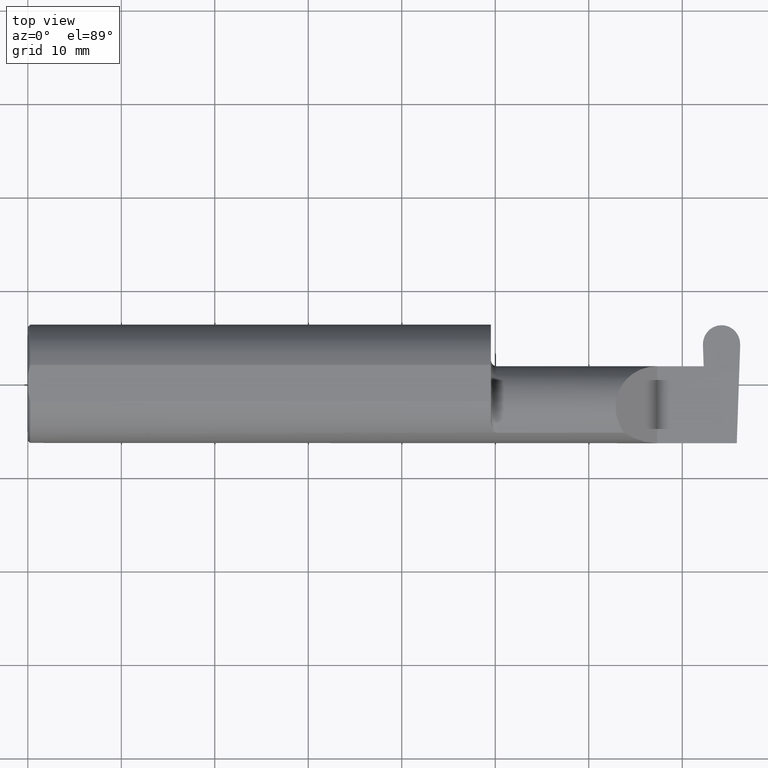
[diagram: clean part render]
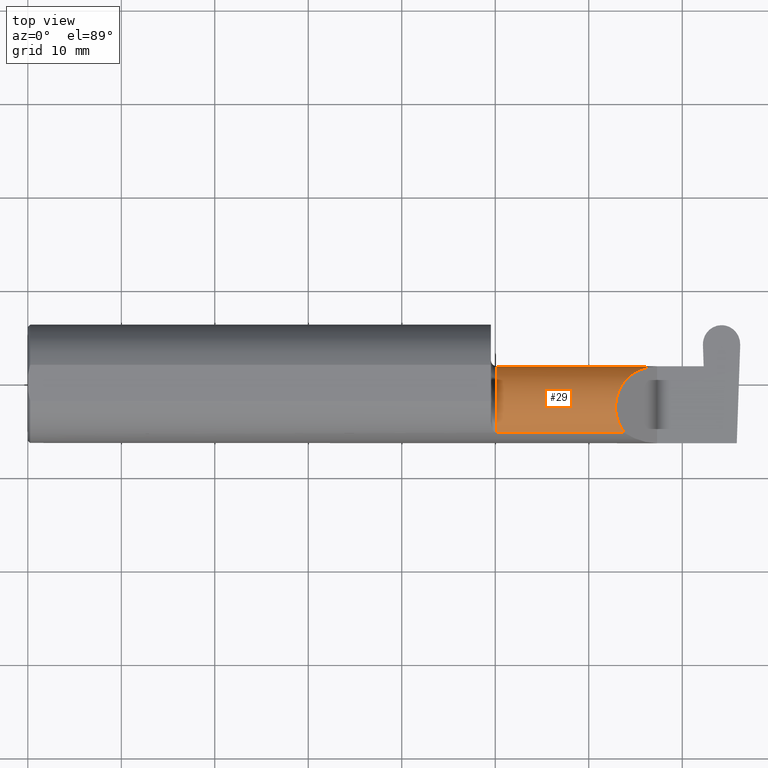
[diagram: same view with one face highlighted and labeled with its STEP entity id]
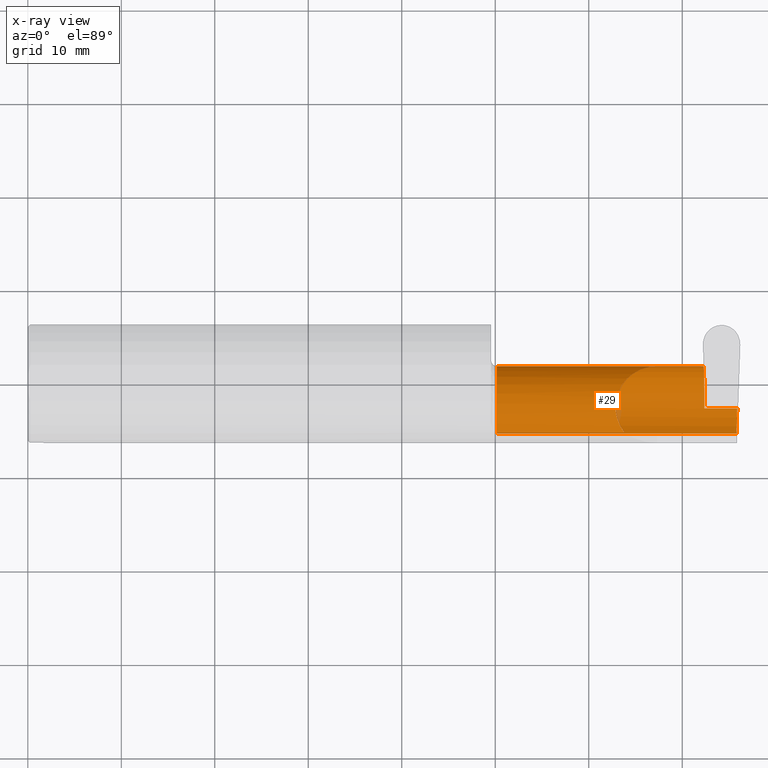
[diagram: x-ray of the same camera — body ghosted, the highlighted face saturated]
A machine part, top view. The second image highlights one B-rep face of the part: STEP entity #29.
The next image is the same camera in x-ray: the body ghosted, the highlighted face saturated — about 1% of this face is hidden behind the body in this view.
In plain terms, the highlighted cylindrical surface (partial cylindrical patch) has radius 4.445 mm, axis along (-1, -0, -0).
Its self-contained STEP definition (entity closure, byte-faithful):
#1 = CARTESIAN_POINT ( 'NONE',  ( 2.847896006995016549, 0.07056399972053264968, -0.1057442486376092144 ) ) ;
#10 = VERTEX_POINT ( 'NONE', #578 ) ;
#20 = CARTESIAN_POINT ( 'NONE',  ( 1.950000000000000178, -0.1008500000000000507, 0.000000000000000000 ) ) ;
#23 = EDGE_CURVE ( 'NONE', #664, #461, #581, .T. ) ;
#28 = LINE ( 'NONE', #526, #437 ) ;
#29 = ADVANCED_FACE ( 'NONE', ( #80 ), #408, .T. ) ;
#41 = CARTESIAN_POINT ( 'NONE',  ( 2.511704467739031887, -0.2080850024789288877, 0.1382955322609669413 ) ) ;
#45 = CARTESIAN_POINT ( 'NONE',  ( 2.987584882537838826, -0.1008500000000000368, -0.1750000000000000722 ) ) ;
#56 = EDGE_CURVE ( 'NONE', #215, #301, #28, .T. ) ;
#61 = B_SPLINE_CURVE_WITH_KNOTS ( 'NONE', 3,
 ( #424, #145, #254, #313 ),
 .UNSPECIFIED., .F., .F.,
 ( 4, 4 ),
 ( 0.000000000000000000, 1.000000000000000000 ),
 .UNSPECIFIED. ) ;
#64 = VECTOR ( 'NONE', #117, 39.37007874015748143 ) ;
#66 = CARTESIAN_POINT ( 'NONE',  ( 2.985143277913549831, -0.1771157075472508391, -0.1623092683844332140 ) ) ;
#77 = VECTOR ( 'NONE', #100, 39.37007874015748143 ) ;
#80 = FACE_OUTER_BOUND ( 'NONE', #505, .T. ) ;
#95 = VERTEX_POINT ( 'NONE', #698 ) ;
#100 = DIRECTION ( 'NONE',  ( -1.000000000000000000, -3.825103525024356331E-17, -0.000000000000000000 ) ) ;
#108 = CARTESIAN_POINT ( 'NONE',  ( 2.849201506090199842, -0.1008500000000000368, -0.1750000000000000444 ) ) ;
#112 = CARTESIAN_POINT ( 'NONE',  ( 2.984481223124517690, -0.2080850024789289432, -0.1382955322609668858 ) ) ;
#114 = AXIS2_PLACEMENT_3D ( 'NONE', #20, #191, #304 ) ;
#117 = DIRECTION ( 'NONE',  ( 1.000000000000000000, 3.825103525024356331E-17, 0.000000000000000000 ) ) ;
#133 = DIRECTION ( 'NONE',  ( -1.000000000000000000, -3.825103525024356331E-17, -0.000000000000000000 ) ) ;
#134 = EDGE_CURVE ( 'NONE', #398, #344, #314, .T. ) ;
#136 = VECTOR ( 'NONE', #133, 39.37007874015748143 ) ;
#142 = EDGE_CURVE ( 'NONE', #166, #95, #213, .T. ) ;
#145 = CARTESIAN_POINT ( 'NONE',  ( 2.834871741199312734, 0.07407892981889410700, -0.004071607948635049511 ) ) ;
#153 = EDGE_CURVE ( 'NONE', #608, #95, #450, .T. ) ;
#162 = ORIENTED_EDGE ( 'NONE', *, *, #23, .F. ) ;
#166 = VERTEX_POINT ( 'NONE', #587 ) ;
#168 = CARTESIAN_POINT ( 'NONE',  ( 2.834942811380418259, 0.07414999999999977165, 0.000000000000000000 ) ) ;
#191 = DIRECTION ( 'NONE',  ( -1.000000000000000000, -3.825103525024356331E-17, -0.000000000000000000 ) ) ;
#210 = ORIENTED_EDGE ( 'NONE', *, *, #271, .T. ) ;
#213 = LINE ( 'NONE', #690, #77 ) ;
#215 = VERTEX_POINT ( 'NONE', #45 ) ;
#242 = EDGE_CURVE ( 'NONE', #301, #664, #256, .T. ) ;
#243 = CARTESIAN_POINT ( 'NONE',  ( 2.650000000000000355, 0.07414999999999999369, 1.285879139104719253E-16 ) ) ;
#254 = CARTESIAN_POINT ( 'NONE',  ( 2.834907276289865052, 0.07411446490944693932, -0.002035803974317524322 ) ) ;
#256 =( BOUNDED_CURVE ( )  B_SPLINE_CURVE ( 3, ( #108, #274, #1, #451 ),
 .UNSPECIFIED., .F., .T. ) 
 B_SPLINE_CURVE_WITH_KNOTS ( ( 4, 4 ),
 ( 3.159045946109733993, 4.694935687864652429 ),
 .UNSPECIFIED. ) 
 CURVE ( )  GEOMETRIC_REPRESENTATION_ITEM ( )  RATIONAL_B_SPLINE_CURVE ( ( 1.000000000000000000, 0.8128932002257887035, 0.8128932002257887035, 1.000000000000000000 ) ) 
 REPRESENTATION_ITEM ( '' )  );
#259 = ORIENTED_EDGE ( 'NONE', *, *, #536, .F. ) ;
#265 = CARTESIAN_POINT ( 'NONE',  ( 2.650000000000000355, 0.07414999999999999369, 1.285879139104719253E-16 ) ) ;
#271 = EDGE_CURVE ( 'NONE', #608, #10, #394, .T. ) ;
#274 = CARTESIAN_POINT ( 'NONE',  ( 2.849170060624871326, -0.001152430219572287730, -0.1750000000000000722 ) ) ;
#284 = EDGE_CURVE ( 'NONE', #166, #215, #631, .T. ) ;
#290 = ORIENTED_EDGE ( 'NONE', *, *, #153, .F. ) ;
#301 = VERTEX_POINT ( 'NONE', #397 ) ;
#304 = DIRECTION ( 'NONE',  ( 0.000000000000000000, -1.000000000000000000, 0.000000000000000000 ) ) ;
#313 = CARTESIAN_POINT ( 'NONE',  ( 2.834942811380418259, 0.07414999999999977165, 0.000000000000000000 ) ) ;
#314 = LINE ( 'NONE', #485, #704 ) ;
#344 = VERTEX_POINT ( 'NONE', #168 ) ;
#378 = CARTESIAN_POINT ( 'NONE',  ( 2.482823929317965028, 0.07415000000000000757, 0.1671760706820337450 ) ) ;
#394 = LINE ( 'NONE', #401, #64 ) ;
#397 = CARTESIAN_POINT ( 'NONE',  ( 2.849201506090199842, -0.1008500000000000368, -0.1750000000000000444 ) ) ;
#398 = VERTEX_POINT ( 'NONE', #243 ) ;
#401 = CARTESIAN_POINT ( 'NONE',  ( 2.408868310000000346, -0.2080850024789289432, 0.1382955322609668858 ) ) ;
#408 = CYLINDRICAL_SURFACE ( 'NONE', #114, 0.1750000000000000444 ) ;
#424 = CARTESIAN_POINT ( 'NONE',  ( 2.834836206108759527, 0.07404339472834127467, -0.006107411922952569495 ) ) ;
#426 = CARTESIAN_POINT ( 'NONE',  ( 1.975000000000000089, -0.1008500000000000507, 0.000000000000000000 ) ) ;
#435 = DIRECTION ( 'NONE',  ( -1.000000000000000000, -3.825103525024356331E-17, -0.000000000000000000 ) ) ;
#437 = VECTOR ( 'NONE', #685, 39.37007874015748143 ) ;
#448 = ORIENTED_EDGE ( 'NONE', *, *, #134, .T. ) ;
#450 = CIRCLE ( 'NONE', #691, 0.1750000000000000444 ) ;
#451 = CARTESIAN_POINT ( 'NONE',  ( 2.846094497492901887, 0.07404339472834124691, -0.006107411922953763853 ) ) ;
#454 = CARTESIAN_POINT ( 'NONE',  ( 2.986216381845219203, -0.1400387324517231025, -0.1750000000000000999 ) ) ;
#461 = VERTEX_POINT ( 'NONE', #464 ) ;
#464 = CARTESIAN_POINT ( 'NONE',  ( 2.834836206108759527, 0.07404339472834127467, -0.006107411922952569495 ) ) ;
#470 = EDGE_CURVE ( 'NONE', #10, #398, #626, .T. ) ;
#472 = ORIENTED_EDGE ( 'NONE', *, *, #470, .T. ) ;
#485 = CARTESIAN_POINT ( 'NONE',  ( 1.950000000000000178, 0.07414999999999996594, 1.285879139104719253E-16 ) ) ;
#486 = ORIENTED_EDGE ( 'NONE', *, *, #142, .T. ) ;
#496 = CARTESIAN_POINT ( 'NONE',  ( 2.846094497492901887, 0.07404339472834124691, -0.006107411922953763853 ) ) ;
#505 = EDGE_LOOP ( 'NONE', ( #486, #290, #210, #472, #448, #259, #162, #659, #661, #683 ) ) ;
#526 = CARTESIAN_POINT ( 'NONE',  ( 3.402190948718818664, -0.1008500000000000368, -0.1750000000000000722 ) ) ;
#536 = EDGE_CURVE ( 'NONE', #461, #344, #61, .T. ) ;
#578 = CARTESIAN_POINT ( 'NONE',  ( 2.511704467739031887, -0.2080850024789288877, 0.1382955322609669413 ) ) ;
#581 = LINE ( 'NONE', #680, #136 ) ;
#587 = CARTESIAN_POINT ( 'NONE',  ( 2.984481223124517690, -0.2080850024789289432, -0.1382955322609668858 ) ) ;
#608 = VERTEX_POINT ( 'NONE', #641 ) ;
#626 =( BOUNDED_CURVE ( )  B_SPLINE_CURVE ( 3, ( #41, #645, #378, #265 ),
 .UNSPECIFIED., .F., .T. ) 
 B_SPLINE_CURVE_WITH_KNOTS ( ( 4, 4 ),
 ( 5.623622464215682015, 7.853981633974482790 ),
 .UNSPECIFIED. ) 
 CURVE ( )  GEOMETRIC_REPRESENTATION_ITEM ( )  RATIONAL_B_SPLINE_CURVE ( ( 1.000000000000000000, 0.6266774836123999437, 0.6266774836123999437, 1.000000000000000000 ) ) 
 REPRESENTATION_ITEM ( '' )  );
#631 =( BOUNDED_CURVE ( )  B_SPLINE_CURVE ( 3, ( #112, #66, #454, #667 ),
 .UNSPECIFIED., .F., .F. ) 
 B_SPLINE_CURVE_WITH_KNOTS ( ( 4, 4 ),
 ( 0.4474640105399719792, 1.107026853503876973 ),
 .UNSPECIFIED. ) 
 CURVE ( )  GEOMETRIC_REPRESENTATION_ITEM ( )  RATIONAL_B_SPLINE_CURVE ( ( 1.000000000000000000, 0.9640754331822831702, 0.9640754331822831702, 1.000000000000000000 ) ) 
 REPRESENTATION_ITEM ( '' )  );
#641 = CARTESIAN_POINT ( 'NONE',  ( 1.975000000000000089, -0.2080850024789289432, 0.1382955322609669135 ) ) ;
#642 = DIRECTION ( 'NONE',  ( 0.000000000000000000, -1.000000000000000000, 0.000000000000000000 ) ) ;
#645 = CARTESIAN_POINT ( 'NONE',  ( 2.409263745716142768, -0.07597241004310673063, 0.2407362542838552832 ) ) ;
#659 = ORIENTED_EDGE ( 'NONE', *, *, #242, .F. ) ;
#661 = ORIENTED_EDGE ( 'NONE', *, *, #56, .F. ) ;
#664 = VERTEX_POINT ( 'NONE', #496 ) ;
#667 = CARTESIAN_POINT ( 'NONE',  ( 2.987584882537838826, -0.1008500000000000368, -0.1750000000000000722 ) ) ;
#680 = CARTESIAN_POINT ( 'NONE',  ( 1.950000000000000178, 0.07404339472834138569, -0.006107411922947746964 ) ) ;
#683 = ORIENTED_EDGE ( 'NONE', *, *, #284, .F. ) ;
#685 = DIRECTION ( 'NONE',  ( -1.000000000000000000, -0.000000000000000000, -0.000000000000000000 ) ) ;
#687 = DIRECTION ( 'NONE',  ( 1.000000000000000000, 3.825103525024356331E-17, 0.000000000000000000 ) ) ;
#690 = CARTESIAN_POINT ( 'NONE',  ( 2.408868310000000346, -0.2080850024789289432, -0.1382955322609668858 ) ) ;
#691 = AXIS2_PLACEMENT_3D ( 'NONE', #426, #435, #642 ) ;
#698 = CARTESIAN_POINT ( 'NONE',  ( 1.975000000000000089, -0.2080850024789289709, -0.1382955322609668580 ) ) ;
#704 = VECTOR ( 'NONE', #687, 39.37007874015748143 ) ;